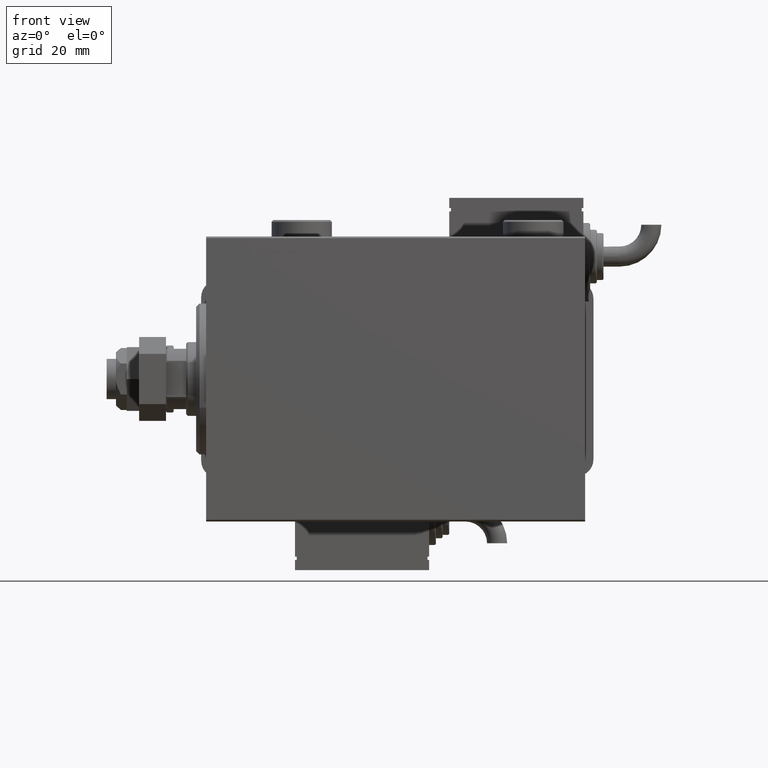
[diagram: clean part render]
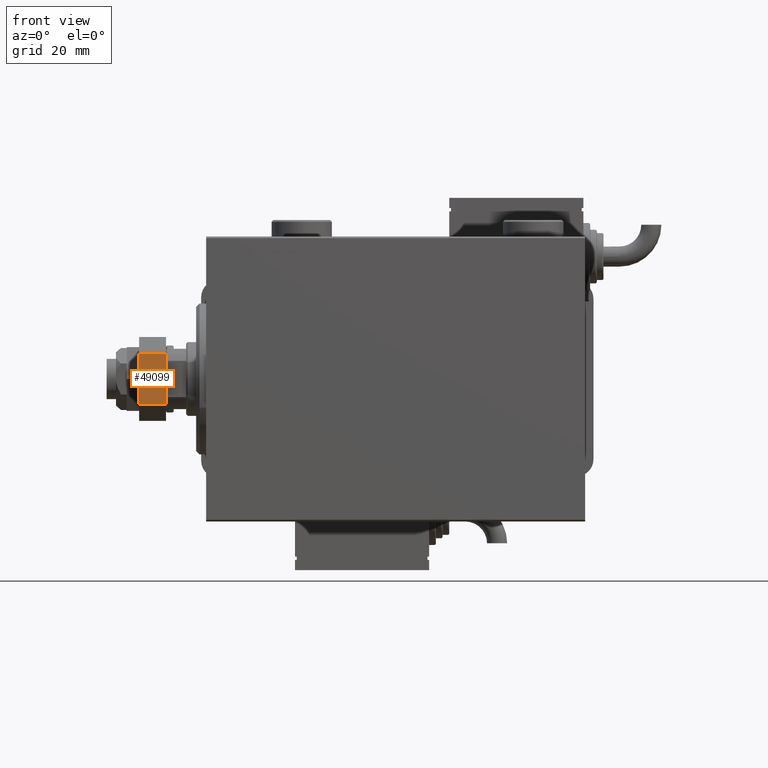
[diagram: same view with one face highlighted and labeled with its STEP entity id]
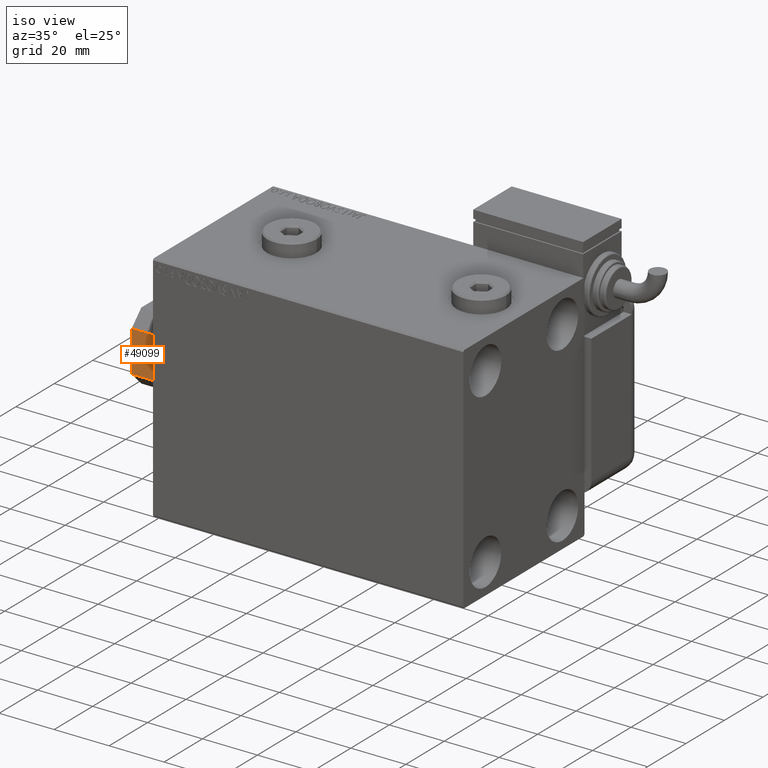
[diagram: same view with one face highlighted and labeled with its STEP entity id]
A machine part, front view. The second image highlights one B-rep face of the part: STEP entity #49099.
A second angle (iso view) of the same face is appended — the face is thin or edge-on in the first view.
In plain terms, the highlighted planar face has unit normal (0, 1, 0).
Its self-contained STEP definition (entity closure, byte-faithful):
#834 = FACE_OUTER_BOUND ( 'NONE', #23090, .T. ) ;
#2236 = VECTOR ( 'NONE', #28705, 1000.000000000000000 ) ;
#5884 = LINE ( 'NONE', #34539, #2236 ) ;
#6673 = DIRECTION ( 'NONE',  ( 0.000000000000000000, 1.000000000000000000, 0.000000000000000000 ) ) ;
#7861 = ORIENTED_EDGE ( 'NONE', *, *, #52174, .T. ) ;
#11709 = VERTEX_POINT ( 'NONE', #12736 ) ;
#12736 = CARTESIAN_POINT ( 'NONE',  ( -7.500000000000040856, 0.000000000000000000, 0.000000000000000000 ) ) ;
#15002 = DIRECTION ( 'NONE',  ( 0.000000000000000000, -0.000000000000000000, 1.000000000000000000 ) ) ;
#17090 = DIRECTION ( 'NONE',  ( 1.000000000000000000, 0.000000000000000000, 0.000000000000000000 ) ) ;
#21074 = CARTESIAN_POINT ( 'NONE',  ( 7.499999999999992895, 0.000000000000000000, 8.000000000000000000 ) ) ;
#21347 = ORIENTED_EDGE ( 'NONE', *, *, #59993, .F. ) ;
#21974 = AXIS2_PLACEMENT_3D ( 'NONE', #38734, #6673, #15002 ) ;
#23090 = EDGE_LOOP ( 'NONE', ( #21347, #7861, #27093, #28291 ) ) ;
#23633 = LINE ( 'NONE', #37495, #33998 ) ;
#26857 = VERTEX_POINT ( 'NONE', #35613 ) ;
#27033 = VERTEX_POINT ( 'NONE', #57458 ) ;
#27093 = ORIENTED_EDGE ( 'NONE', *, *, #58151, .T. ) ;
#28291 = ORIENTED_EDGE ( 'NONE', *, *, #41381, .T. ) ;
#28705 = DIRECTION ( 'NONE',  ( 0.000000000000000000, 0.000000000000000000, -1.000000000000000000 ) ) ;
#30005 = VECTOR ( 'NONE', #17090, 1000.000000000000000 ) ;
#33439 = VECTOR ( 'NONE', #58378, 1000.000000000000000 ) ;
#33998 = VECTOR ( 'NONE', #56318, 1000.000000000000000 ) ;
#34539 = CARTESIAN_POINT ( 'NONE',  ( -7.500000000000040856, 0.000000000000000000, 8.000000000000000000 ) ) ;
#34933 = LINE ( 'NONE', #21074, #33439 ) ;
#35613 = CARTESIAN_POINT ( 'NONE',  ( 7.499999999999992895, 0.000000000000000000, 8.000000000000000000 ) ) ;
#37495 = CARTESIAN_POINT ( 'NONE',  ( -12.50000000000001066, 0.000000000000000000, 8.000000000000000000 ) ) ;
#38033 = CARTESIAN_POINT ( 'NONE',  ( -7.500000000000040856, 0.000000000000000000, 8.000000000000000000 ) ) ;
#38734 = CARTESIAN_POINT ( 'NONE',  ( -12.50000000000001066, 0.000000000000000000, 8.000000000000000000 ) ) ;
#40812 = LINE ( 'NONE', #55928, #30005 ) ;
#41381 = EDGE_CURVE ( 'NONE', #27033, #26857, #34933, .T. ) ;
#43958 = VERTEX_POINT ( 'NONE', #38033 ) ;
#43968 = PLANE ( 'NONE',  #21974 ) ;
#49099 = ADVANCED_FACE ( 'NONE', ( #834 ), #43968, .F. ) ;
#52174 = EDGE_CURVE ( 'NONE', #43958, #11709, #5884, .T. ) ;
#55928 = CARTESIAN_POINT ( 'NONE',  ( -12.50000000000001066, 0.000000000000000000, 0.000000000000000000 ) ) ;
#56318 = DIRECTION ( 'NONE',  ( 1.000000000000000000, 0.000000000000000000, 0.000000000000000000 ) ) ;
#57458 = CARTESIAN_POINT ( 'NONE',  ( 7.499999999999992895, 0.000000000000000000, 0.000000000000000000 ) ) ;
#58151 = EDGE_CURVE ( 'NONE', #11709, #27033, #40812, .T. ) ;
#58378 = DIRECTION ( 'NONE',  ( 0.000000000000000000, 0.000000000000000000, 1.000000000000000000 ) ) ;
#59993 = EDGE_CURVE ( 'NONE', #43958, #26857, #23633, .T. ) ;